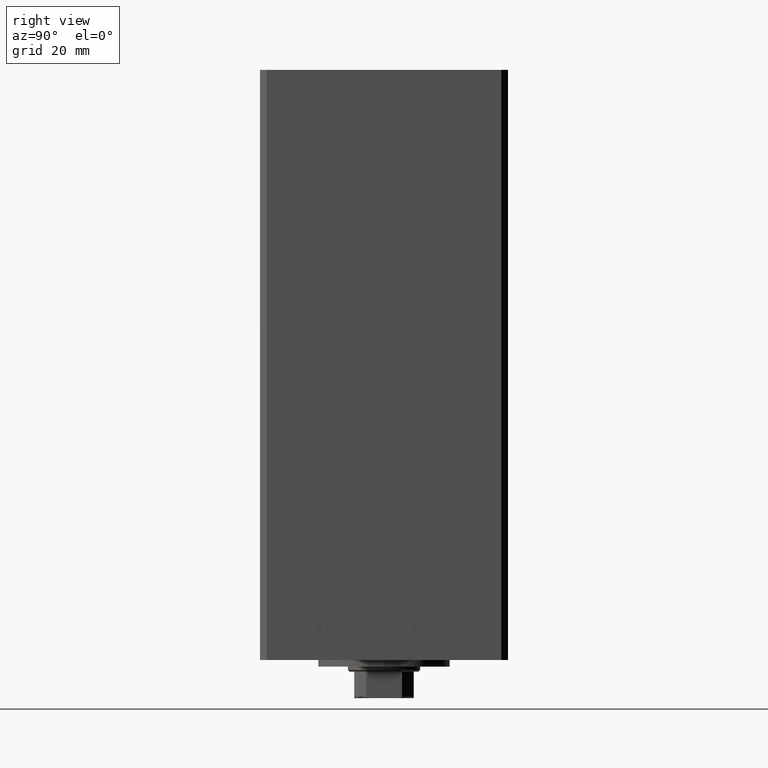
[diagram: clean part render]
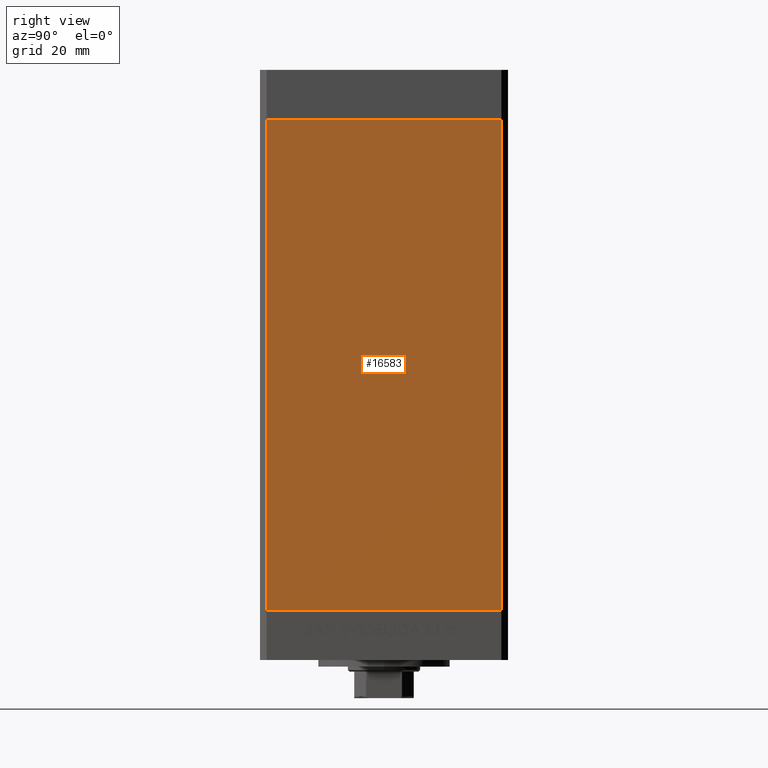
[diagram: same view with one face highlighted and labeled with its STEP entity id]
A machine part, right view. The second image highlights one B-rep face of the part: STEP entity #16583.
In plain terms, the highlighted planar face has unit normal (1, -0, 0).
Its self-contained STEP definition (entity closure, byte-faithful):
#934 = CARTESIAN_POINT ( 'NONE',  ( 42.50000000000000711, 35.50000000000001421, 0.000000000000000000 ) ) ;
#1349 = DIRECTION ( 'NONE',  ( 2.931927001650941360E-16, 1.000000000000000000, 0.000000000000000000 ) ) ;
#2734 = VERTEX_POINT ( 'NONE', #23315 ) ;
#5476 = CARTESIAN_POINT ( 'NONE',  ( 42.49999999999998579, -35.50000000000000711, 148.5000000000000000 ) ) ;
#5557 = DIRECTION ( 'NONE',  ( 1.000000000000000000, -2.931927001650941360E-16, 0.000000000000000000 ) ) ;
#6338 = LINE ( 'NONE', #39754, #22075 ) ;
#8836 = EDGE_CURVE ( 'NONE', #24436, #2734, #6338, .T. ) ;
#9506 = PLANE ( 'NONE',  #22345 ) ;
#11811 = DIRECTION ( 'NONE',  ( -2.931927001650941360E-16, -1.000000000000000000, 0.000000000000000000 ) ) ;
#12091 = ORIENTED_EDGE ( 'NONE', *, *, #28506, .T. ) ;
#16583 = ADVANCED_FACE ( 'NONE', ( #35496 ), #9506, .T. ) ;
#17233 = DIRECTION ( 'NONE',  ( -0.000000000000000000, -0.000000000000000000, -1.000000000000000000 ) ) ;
#17796 = LINE ( 'NONE', #934, #32971 ) ;
#20149 = CARTESIAN_POINT ( 'NONE',  ( 42.50000000000000711, 35.50000000000001421, 148.5000000000000000 ) ) ;
#20231 = EDGE_LOOP ( 'NONE', ( #28440, #42959, #37586, #12091 ) ) ;
#22075 = VECTOR ( 'NONE', #17233, 1000.000000000000000 ) ;
#22345 = AXIS2_PLACEMENT_3D ( 'NONE', #20149, #5557, #1349 ) ;
#23093 = LINE ( 'NONE', #34230, #41515 ) ;
#23315 = CARTESIAN_POINT ( 'NONE',  ( 42.50000000000000711, 35.50000000000001421, 0.000000000000000000 ) ) ;
#24436 = VERTEX_POINT ( 'NONE', #30441 ) ;
#28440 = ORIENTED_EDGE ( 'NONE', *, *, #45158, .F. ) ;
#28506 = EDGE_CURVE ( 'NONE', #40971, #31180, #43086, .T. ) ;
#30441 = CARTESIAN_POINT ( 'NONE',  ( 42.50000000000000711, 35.50000000000001421, 148.5000000000000000 ) ) ;
#30783 = CARTESIAN_POINT ( 'NONE',  ( 42.49999999999998579, -35.50000000000000711, 0.000000000000000000 ) ) ;
#31180 = VERTEX_POINT ( 'NONE', #30783 ) ;
#31703 = DIRECTION ( 'NONE',  ( -0.000000000000000000, -0.000000000000000000, -1.000000000000000000 ) ) ;
#32971 = VECTOR ( 'NONE', #11811, 1000.000000000000000 ) ;
#34230 = CARTESIAN_POINT ( 'NONE',  ( 42.50000000000000711, 35.50000000000001421, 148.5000000000000000 ) ) ;
#35496 = FACE_OUTER_BOUND ( 'NONE', #20231, .T. ) ;
#37586 = ORIENTED_EDGE ( 'NONE', *, *, #40284, .T. ) ;
#37602 = VECTOR ( 'NONE', #31703, 1000.000000000000000 ) ;
#39754 = CARTESIAN_POINT ( 'NONE',  ( 42.50000000000000711, 35.50000000000001421, 148.5000000000000000 ) ) ;
#40037 = CARTESIAN_POINT ( 'NONE',  ( 42.49999999999998579, -35.50000000000000711, 148.5000000000000000 ) ) ;
#40284 = EDGE_CURVE ( 'NONE', #24436, #40971, #23093, .T. ) ;
#40971 = VERTEX_POINT ( 'NONE', #40037 ) ;
#41515 = VECTOR ( 'NONE', #41910, 1000.000000000000000 ) ;
#41910 = DIRECTION ( 'NONE',  ( -2.931927001650941360E-16, -1.000000000000000000, 0.000000000000000000 ) ) ;
#42959 = ORIENTED_EDGE ( 'NONE', *, *, #8836, .F. ) ;
#43086 = LINE ( 'NONE', #5476, #37602 ) ;
#45158 = EDGE_CURVE ( 'NONE', #2734, #31180, #17796, .T. ) ;